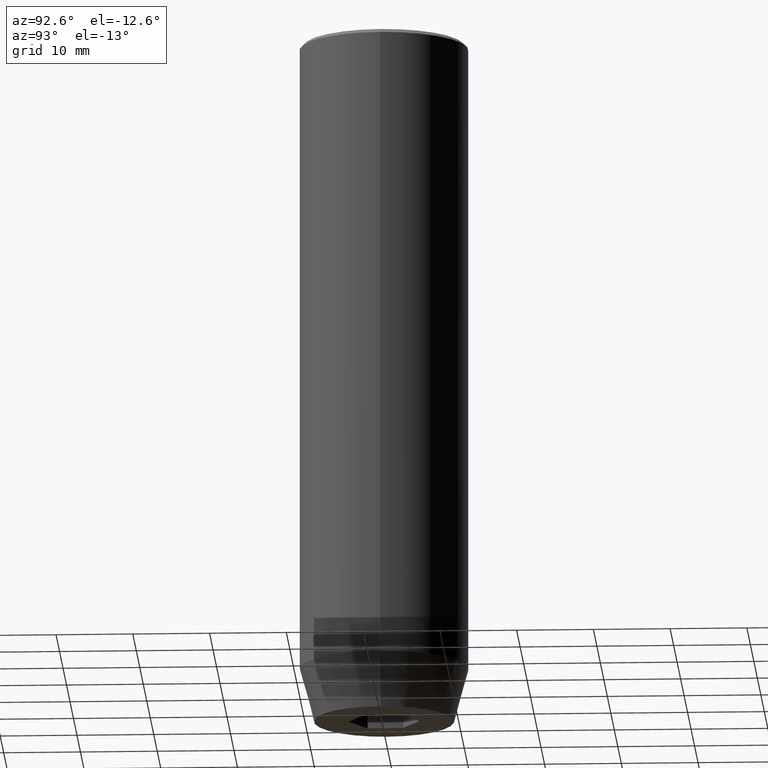
[diagram: clean part render]
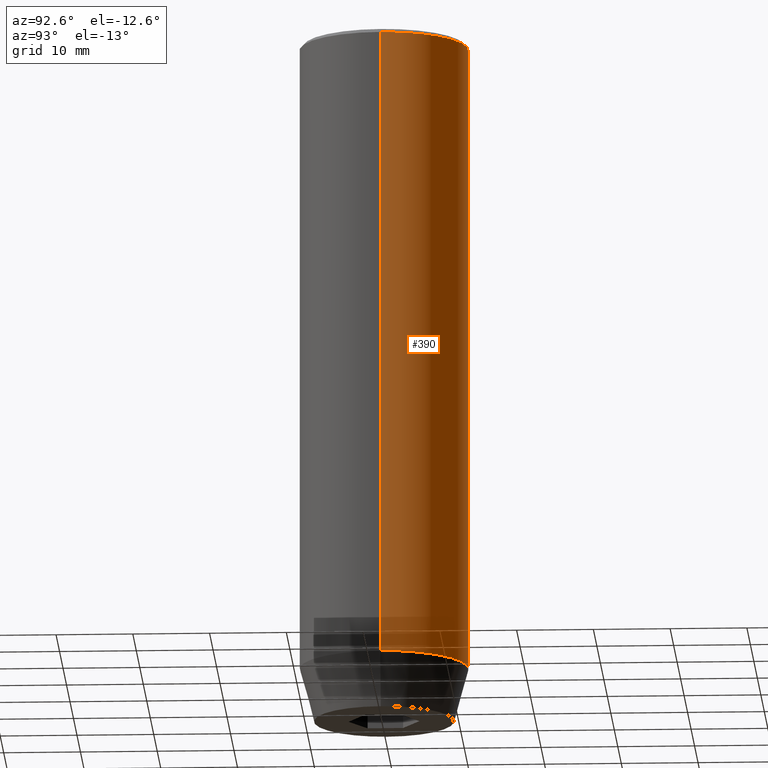
[diagram: same view with one face highlighted and labeled with its STEP entity id]
A machine part, auxiliary view. The second image highlights one B-rep face of the part: STEP entity #390.
In plain terms, the highlighted cylindrical surface (partial cylindrical patch) has radius 11 mm, axis along (-0, -0, 1).
Its self-contained STEP definition (entity closure, byte-faithful):
#40 = CARTESIAN_POINT ( 'NONE',  ( -11.00000000000000000, 1.347111479062088405E-15, 0.000000000000000000 ) ) ;
#66 = ORIENTED_EDGE ( 'NONE', *, *, #233, .T. ) ;
#80 = CARTESIAN_POINT ( 'NONE',  ( -11.00000000000000000, 1.347111479062088405E-15, -0.5000000000000004441 ) ) ;
#83 = VECTOR ( 'NONE', #401, 1000.000000000000000 ) ;
#90 = ORIENTED_EDGE ( 'NONE', *, *, #163, .T. ) ;
#107 = DIRECTION ( 'NONE',  ( 0.000000000000000000, 0.000000000000000000, -1.000000000000000000 ) ) ;
#110 = CARTESIAN_POINT ( 'NONE',  ( 0.000000000000000000, 0.000000000000000000, -82.99999999999998579 ) ) ;
#114 = CARTESIAN_POINT ( 'NONE',  ( -11.00000000000000000, 1.347111479062088405E-15, -82.99999999999998579 ) ) ;
#118 = VERTEX_POINT ( 'NONE', #179 ) ;
#119 = AXIS2_PLACEMENT_3D ( 'NONE', #481, #309, #444 ) ;
#163 = EDGE_CURVE ( 'NONE', #244, #344, #449, .T. ) ;
#169 = AXIS2_PLACEMENT_3D ( 'NONE', #110, #292, #520 ) ;
#179 = CARTESIAN_POINT ( 'NONE',  ( 11.00000000000000000, 0.000000000000000000, -0.5000000000000004441 ) ) ;
#181 = LINE ( 'NONE', #535, #83 ) ;
#193 = ORIENTED_EDGE ( 'NONE', *, *, #528, .T. ) ;
#201 = VERTEX_POINT ( 'NONE', #376 ) ;
#233 = EDGE_CURVE ( 'NONE', #344, #118, #272, .T. ) ;
#234 = EDGE_LOOP ( 'NONE', ( #193, #90, #66, #239 ) ) ;
#239 = ORIENTED_EDGE ( 'NONE', *, *, #447, .F. ) ;
#244 = VERTEX_POINT ( 'NONE', #114 ) ;
#272 = CIRCLE ( 'NONE', #494, 11.00000000000000000 ) ;
#288 = DIRECTION ( 'NONE',  ( 1.000000000000000000, 0.000000000000000000, 0.000000000000000000 ) ) ;
#292 = DIRECTION ( 'NONE',  ( -0.000000000000000000, -0.000000000000000000, 1.000000000000000000 ) ) ;
#309 = DIRECTION ( 'NONE',  ( -0.000000000000000000, -0.000000000000000000, 1.000000000000000000 ) ) ;
#344 = VERTEX_POINT ( 'NONE', #80 ) ;
#376 = CARTESIAN_POINT ( 'NONE',  ( 11.00000000000000000, 0.000000000000000000, -82.99999999999998579 ) ) ;
#390 = ADVANCED_FACE ( 'NONE', ( #446 ), #534, .T. ) ;
#401 = DIRECTION ( 'NONE',  ( -0.000000000000000000, -0.000000000000000000, 1.000000000000000000 ) ) ;
#435 = CARTESIAN_POINT ( 'NONE',  ( 0.000000000000000000, 0.000000000000000000, -0.5000000000000004441 ) ) ;
#440 = VECTOR ( 'NONE', #500, 1000.000000000000000 ) ;
#444 = DIRECTION ( 'NONE',  ( 1.000000000000000000, 0.000000000000000000, 0.000000000000000000 ) ) ;
#446 = FACE_OUTER_BOUND ( 'NONE', #234, .T. ) ;
#447 = EDGE_CURVE ( 'NONE', #201, #118, #181, .T. ) ;
#449 = LINE ( 'NONE', #40, #440 ) ;
#481 = CARTESIAN_POINT ( 'NONE',  ( 0.000000000000000000, 0.000000000000000000, 0.000000000000000000 ) ) ;
#488 = CIRCLE ( 'NONE', #169, 11.00000000000000000 ) ;
#494 = AXIS2_PLACEMENT_3D ( 'NONE', #435, #107, #288 ) ;
#500 = DIRECTION ( 'NONE',  ( -0.000000000000000000, -0.000000000000000000, 1.000000000000000000 ) ) ;
#520 = DIRECTION ( 'NONE',  ( 1.000000000000000000, 0.000000000000000000, 0.000000000000000000 ) ) ;
#528 = EDGE_CURVE ( 'NONE', #201, #244, #488, .T. ) ;
#534 = CYLINDRICAL_SURFACE ( 'NONE', #119, 11.00000000000000000 ) ;
#535 = CARTESIAN_POINT ( 'NONE',  ( 11.00000000000000000, 0.000000000000000000, 0.000000000000000000 ) ) ;